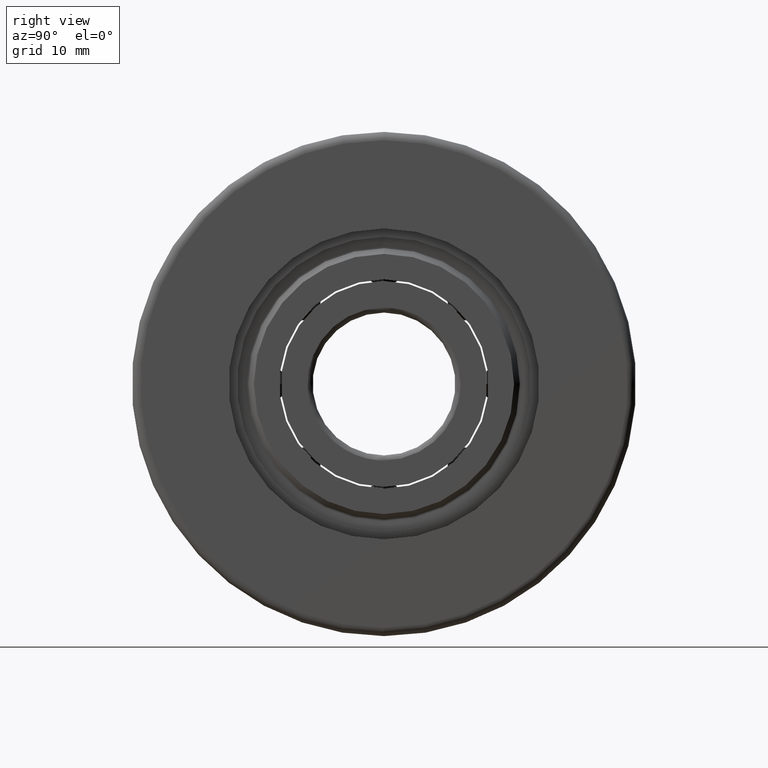
[diagram: clean part render]
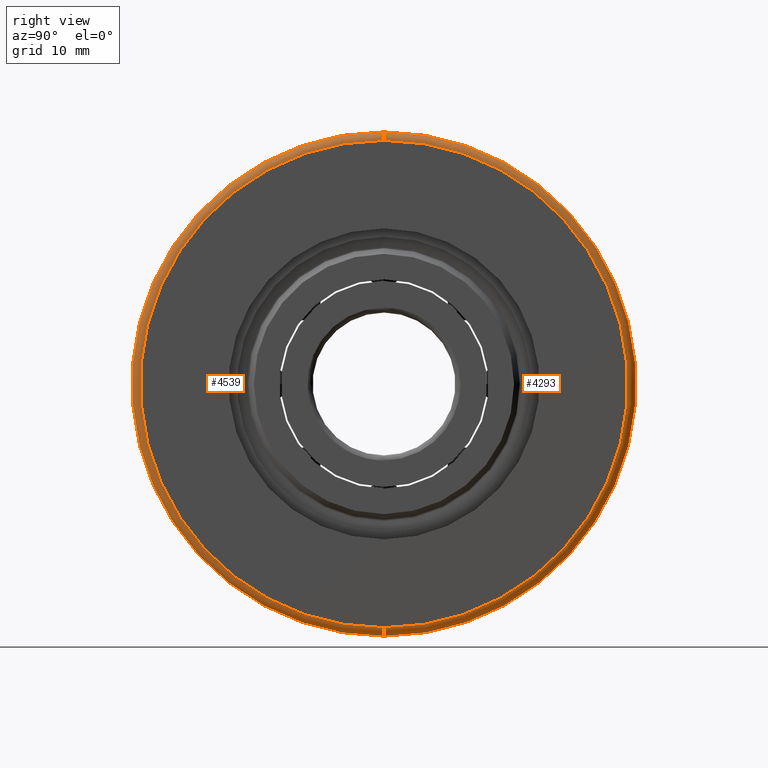
[diagram: same view with one multi-face feature highlighted, each face labeled with its STEP entity id]
A machine part, right view. The highlighted faces form ONE feature: a constant-radius fillet chain: 2 tangent blend faces with common blend radius 1 mm. The faces share edges in the B-rep.
Their STEP definitions:
[1] entity #4293 (Torus):
#82 = AXIS2_PLACEMENT_3D ( 'NONE', #2536, #826, #4257 ) ;
#116 = DIRECTION ( 'NONE',  ( 1.000000000000000000, 0.0000000000000000000, 0.0000000000000000000 ) ) ;
#155 = VERTEX_POINT ( 'NONE', #5046 ) ;
#392 = AXIS2_PLACEMENT_3D ( 'NONE', #2323, #4067, #1874 ) ;
#401 = EDGE_CURVE ( 'NONE', #4662, #2286, #876, .T. ) ;
#713 = TOROIDAL_SURFACE ( 'NONE', #1896, 28.99999999999999600, 1.000000000000000000 ) ;
#788 = AXIS2_PLACEMENT_3D ( 'NONE', #3490, #116, #984 ) ;
#826 = DIRECTION ( 'NONE',  ( -0.0000000000000000000, 1.000000000000000000, 1.224646799147353200E-016 ) ) ;
#876 = CIRCLE ( 'NONE', #82, 1.000000000000000900 ) ;
#984 = DIRECTION ( 'NONE',  ( 0.0000000000000000000, 0.0000000000000000000, 1.000000000000000000 ) ) ;
#1029 = VERTEX_POINT ( 'NONE', #3671 ) ;
#1078 = AXIS2_PLACEMENT_3D ( 'NONE', #5052, #2424, #4218 ) ;
#1342 = ORIENTED_EDGE ( 'NONE', *, *, #401, .T. ) ;
#1368 = EDGE_CURVE ( 'NONE', #4662, #155, #2684, .T. ) ;
#1796 = CARTESIAN_POINT ( 'NONE',  ( 19.00000000000000000, 0.0000000000000000000, 0.0000000000000000000 ) ) ;
#1834 = DIRECTION ( 'NONE',  ( -1.000000000000000000, -0.0000000000000000000, -0.0000000000000000000 ) ) ;
#1874 = DIRECTION ( 'NONE',  ( 0.0000000000000000000, 0.0000000000000000000, -1.000000000000000000 ) ) ;
#1896 = AXIS2_PLACEMENT_3D ( 'NONE', #1796, #1834, #2675 ) ;
#2040 = FACE_OUTER_BOUND ( 'NONE', #4112, .T. ) ;
#2090 = ORIENTED_EDGE ( 'NONE', *, *, #3501, .F. ) ;
#2286 = VERTEX_POINT ( 'NONE', #5017 ) ;
#2323 = CARTESIAN_POINT ( 'NONE',  ( 19.00000000000000000, 0.0000000000000000000, 28.99999999999999600 ) ) ;
#2388 = ORIENTED_EDGE ( 'NONE', *, *, #1368, .F. ) ;
#2424 = DIRECTION ( 'NONE',  ( -1.000000000000000000, -0.0000000000000000000, -0.0000000000000000000 ) ) ;
#2536 = CARTESIAN_POINT ( 'NONE',  ( 19.00000000000000000, 3.551475717527324000E-015, -28.99999999999999600 ) ) ;
#2675 = DIRECTION ( 'NONE',  ( 0.0000000000000000000, 0.0000000000000000000, 1.000000000000000000 ) ) ;
#2684 = CIRCLE ( 'NONE', #788, 28.99999999999999600 ) ;
#2743 = CARTESIAN_POINT ( 'NONE',  ( 20.00000000000000000, 3.612708057484691600E-015, -28.99999999999999600 ) ) ;
#3490 = CARTESIAN_POINT ( 'NONE',  ( 20.00000000000000000, 0.0000000000000000000, 0.0000000000000000000 ) ) ;
#3501 = EDGE_CURVE ( 'NONE', #1029, #2286, #3607, .T. ) ;
#3607 = CIRCLE ( 'NONE', #1078, 30.00000000000000000 ) ;
#3671 = CARTESIAN_POINT ( 'NONE',  ( 19.00000000000000000, 0.0000000000000000000, 30.00000000000000000 ) ) ;
#3778 = EDGE_CURVE ( 'NONE', #155, #1029, #4274, .T. ) ;
#4025 = ORIENTED_EDGE ( 'NONE', *, *, #3778, .F. ) ;
#4067 = DIRECTION ( 'NONE',  ( 0.0000000000000000000, -1.000000000000000000, 0.0000000000000000000 ) ) ;
#4112 = EDGE_LOOP ( 'NONE', ( #2388, #1342, #2090, #4025 ) ) ;
#4218 = DIRECTION ( 'NONE',  ( 0.0000000000000000000, 0.0000000000000000000, 1.000000000000000000 ) ) ;
#4257 = DIRECTION ( 'NONE',  ( 0.0000000000000000000, -1.224646799147353500E-016, 1.000000000000000000 ) ) ;
#4274 = CIRCLE ( 'NONE', #392, 1.000000000000000900 ) ;
#4293 = ADVANCED_FACE ( 'NONE', ( #2040 ), #713, .T. ) ;
#4662 = VERTEX_POINT ( 'NONE', #2743 ) ;
#5017 = CARTESIAN_POINT ( 'NONE',  ( 19.00000000000000000, 3.673940397442059200E-015, -30.00000000000000000 ) ) ;
#5046 = CARTESIAN_POINT ( 'NONE',  ( 20.00000000000000000, 0.0000000000000000000, 28.99999999999999600 ) ) ;
#5052 = CARTESIAN_POINT ( 'NONE',  ( 19.00000000000000000, 0.0000000000000000000, 0.0000000000000000000 ) ) ;
[2] entity #4539 (Torus):
#82 = AXIS2_PLACEMENT_3D ( 'NONE', #2536, #826, #4257 ) ;
#99 = DIRECTION ( 'NONE',  ( -1.000000000000000000, -0.0000000000000000000, -0.0000000000000000000 ) ) ;
#143 = DIRECTION ( 'NONE',  ( 1.000000000000000000, 0.0000000000000000000, 0.0000000000000000000 ) ) ;
#155 = VERTEX_POINT ( 'NONE', #5046 ) ;
#392 = AXIS2_PLACEMENT_3D ( 'NONE', #2323, #4067, #1874 ) ;
#401 = EDGE_CURVE ( 'NONE', #4662, #2286, #876, .T. ) ;
#512 = DIRECTION ( 'NONE',  ( 0.0000000000000000000, 0.0000000000000000000, 1.000000000000000000 ) ) ;
#826 = DIRECTION ( 'NONE',  ( -0.0000000000000000000, 1.000000000000000000, 1.224646799147353200E-016 ) ) ;
#876 = CIRCLE ( 'NONE', #82, 1.000000000000000900 ) ;
#949 = ORIENTED_EDGE ( 'NONE', *, *, #5081, .F. ) ;
#978 = TOROIDAL_SURFACE ( 'NONE', #2360, 28.99999999999999600, 1.000000000000000000 ) ;
#1029 = VERTEX_POINT ( 'NONE', #3671 ) ;
#1305 = FACE_OUTER_BOUND ( 'NONE', #4467, .T. ) ;
#1341 = EDGE_CURVE ( 'NONE', #2286, #1029, #3956, .T. ) ;
#1369 = ORIENTED_EDGE ( 'NONE', *, *, #401, .F. ) ;
#1488 = ORIENTED_EDGE ( 'NONE', *, *, #1341, .F. ) ;
#1641 = AXIS2_PLACEMENT_3D ( 'NONE', #2656, #99, #512 ) ;
#1874 = DIRECTION ( 'NONE',  ( 0.0000000000000000000, 0.0000000000000000000, -1.000000000000000000 ) ) ;
#2072 = CARTESIAN_POINT ( 'NONE',  ( 19.00000000000000000, 0.0000000000000000000, 0.0000000000000000000 ) ) ;
#2159 = ORIENTED_EDGE ( 'NONE', *, *, #3778, .T. ) ;
#2236 = DIRECTION ( 'NONE',  ( 0.0000000000000000000, 0.0000000000000000000, 1.000000000000000000 ) ) ;
#2269 = CARTESIAN_POINT ( 'NONE',  ( 20.00000000000000000, 0.0000000000000000000, 0.0000000000000000000 ) ) ;
#2286 = VERTEX_POINT ( 'NONE', #5017 ) ;
#2323 = CARTESIAN_POINT ( 'NONE',  ( 19.00000000000000000, 0.0000000000000000000, 28.99999999999999600 ) ) ;
#2360 = AXIS2_PLACEMENT_3D ( 'NONE', #2072, #5507, #5093 ) ;
#2536 = CARTESIAN_POINT ( 'NONE',  ( 19.00000000000000000, 3.551475717527324000E-015, -28.99999999999999600 ) ) ;
#2656 = CARTESIAN_POINT ( 'NONE',  ( 19.00000000000000000, 0.0000000000000000000, 0.0000000000000000000 ) ) ;
#2743 = CARTESIAN_POINT ( 'NONE',  ( 20.00000000000000000, 3.612708057484691600E-015, -28.99999999999999600 ) ) ;
#3671 = CARTESIAN_POINT ( 'NONE',  ( 19.00000000000000000, 0.0000000000000000000, 30.00000000000000000 ) ) ;
#3778 = EDGE_CURVE ( 'NONE', #155, #1029, #4274, .T. ) ;
#3956 = CIRCLE ( 'NONE', #1641, 30.00000000000000000 ) ;
#4062 = CIRCLE ( 'NONE', #5519, 28.99999999999999600 ) ;
#4067 = DIRECTION ( 'NONE',  ( 0.0000000000000000000, -1.000000000000000000, 0.0000000000000000000 ) ) ;
#4257 = DIRECTION ( 'NONE',  ( 0.0000000000000000000, -1.224646799147353500E-016, 1.000000000000000000 ) ) ;
#4274 = CIRCLE ( 'NONE', #392, 1.000000000000000900 ) ;
#4467 = EDGE_LOOP ( 'NONE', ( #1369, #949, #2159, #1488 ) ) ;
#4539 = ADVANCED_FACE ( 'NONE', ( #1305 ), #978, .T. ) ;
#4662 = VERTEX_POINT ( 'NONE', #2743 ) ;
#5017 = CARTESIAN_POINT ( 'NONE',  ( 19.00000000000000000, 3.673940397442059200E-015, -30.00000000000000000 ) ) ;
#5046 = CARTESIAN_POINT ( 'NONE',  ( 20.00000000000000000, 0.0000000000000000000, 28.99999999999999600 ) ) ;
#5081 = EDGE_CURVE ( 'NONE', #155, #4662, #4062, .T. ) ;
#5093 = DIRECTION ( 'NONE',  ( 0.0000000000000000000, 0.0000000000000000000, 1.000000000000000000 ) ) ;
#5507 = DIRECTION ( 'NONE',  ( -1.000000000000000000, -0.0000000000000000000, -0.0000000000000000000 ) ) ;
#5519 = AXIS2_PLACEMENT_3D ( 'NONE', #2269, #143, #2236 ) ;